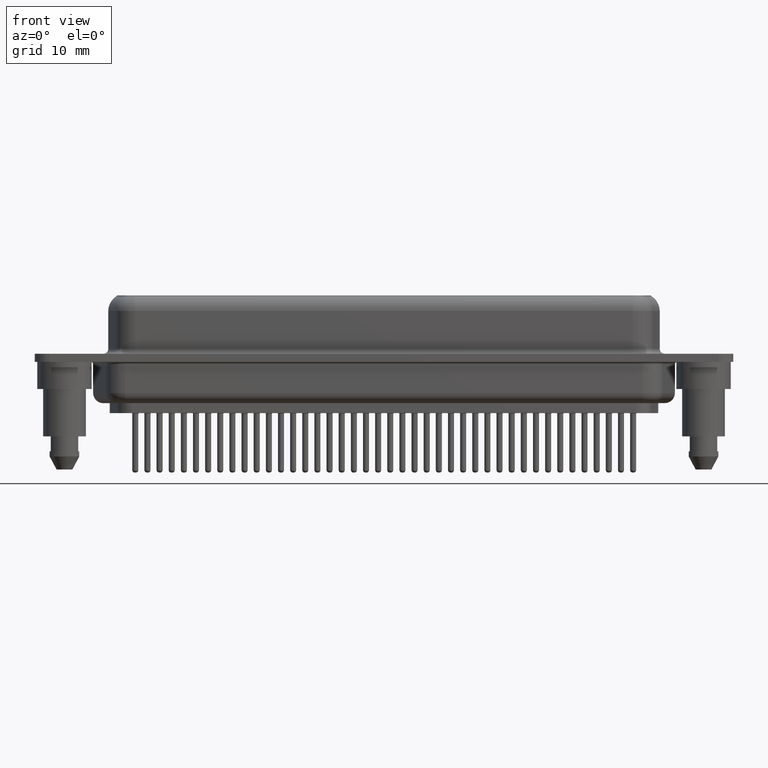
[diagram: clean part render]
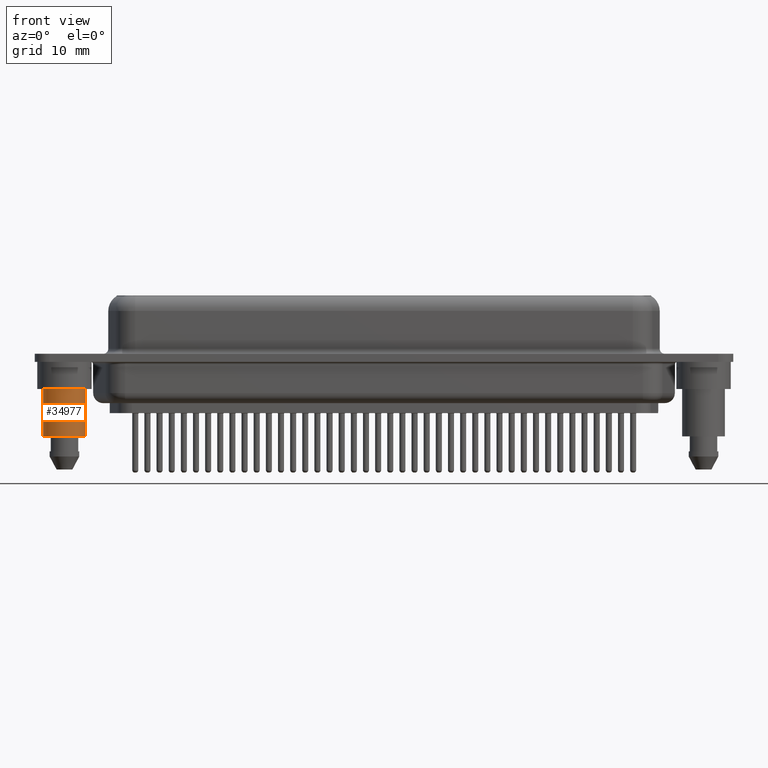
[diagram: same view with one face highlighted and labeled with its STEP entity id]
A machine part, front view. The second image highlights one B-rep face of the part: STEP entity #34977.
In plain terms, the highlighted cylindrical surface (edge-blend (fillet) strip) has radius 2.125 mm, axis along (0, 0, 1).
Its self-contained STEP definition (entity closure, byte-faithful):
#194 = LINE ( 'NONE', #15676, #34860 ) ;
#619 = AXIS2_PLACEMENT_3D ( 'NONE', #29354, #2535, #35436 ) ;
#1713 = DIRECTION ( 'NONE',  ( 1.000000000000000000, 0.0000000000000000000, 0.0000000000000000000 ) ) ;
#2535 = DIRECTION ( 'NONE',  ( -0.0000000000000000000, -0.0000000000000000000, 1.000000000000000000 ) ) ;
#2943 = AXIS2_PLACEMENT_3D ( 'NONE', #4268, #37152, #1713 ) ;
#3884 = ORIENTED_EDGE ( 'NONE', *, *, #26219, .T. ) ;
#4268 = CARTESIAN_POINT ( 'NONE',  ( 0.0000000000000000000, 0.0000000000000000000, 0.5806333143474410319 ) ) ;
#4740 = LINE ( 'NONE', #36647, #29201 ) ;
#5024 = AXIS2_PLACEMENT_3D ( 'NONE', #6746, #30611, #24757 ) ;
#5507 = VERTEX_POINT ( 'NONE', #38563 ) ;
#6746 = CARTESIAN_POINT ( 'NONE',  ( 0.0000000000000000000, 0.0000000000000000000, -7.800000000000001599 ) ) ;
#8567 = VERTEX_POINT ( 'NONE', #9098 ) ;
#9098 = CARTESIAN_POINT ( 'NONE',  ( -2.125000000000000000, 2.602374448188125350E-16, -7.800000000000001599 ) ) ;
#9845 = DIRECTION ( 'NONE',  ( -0.0000000000000000000, -0.0000000000000000000, 1.000000000000000000 ) ) ;
#10000 = DIRECTION ( 'NONE',  ( -0.0000000000000000000, -0.0000000000000000000, 1.000000000000000000 ) ) ;
#10027 = VERTEX_POINT ( 'NONE', #32585 ) ;
#11787 = EDGE_CURVE ( 'NONE', #8567, #10027, #4740, .T. ) ;
#14136 = EDGE_LOOP ( 'NONE', ( #37719, #33486, #3884, #35583 ) ) ;
#15676 = CARTESIAN_POINT ( 'NONE',  ( 2.125000000000000000, 0.0000000000000000000, 0.5806333143474410319 ) ) ;
#16113 = EDGE_CURVE ( 'NONE', #8567, #24828, #19414, .T. ) ;
#19414 = CIRCLE ( 'NONE', #5024, 2.125000000000000000 ) ;
#21319 = CIRCLE ( 'NONE', #619, 2.125000000000000000 ) ;
#24757 = DIRECTION ( 'NONE',  ( 1.000000000000000000, 0.0000000000000000000, 0.0000000000000000000 ) ) ;
#24778 = CARTESIAN_POINT ( 'NONE',  ( 2.125000000000000000, 0.0000000000000000000, -7.800000000000001599 ) ) ;
#24828 = VERTEX_POINT ( 'NONE', #24778 ) ;
#26219 = EDGE_CURVE ( 'NONE', #24828, #5507, #194, .T. ) ;
#28110 = EDGE_CURVE ( 'NONE', #10027, #5507, #21319, .T. ) ;
#29201 = VECTOR ( 'NONE', #9845, 1000.000000000000000 ) ;
#29354 = CARTESIAN_POINT ( 'NONE',  ( 0.0000000000000000000, 0.0000000000000000000, -3.100000000000000533 ) ) ;
#30611 = DIRECTION ( 'NONE',  ( -0.0000000000000000000, -0.0000000000000000000, 1.000000000000000000 ) ) ;
#31458 = FACE_OUTER_BOUND ( 'NONE', #14136, .T. ) ;
#32585 = CARTESIAN_POINT ( 'NONE',  ( -2.125000000000000000, 2.602374448188125350E-16, -3.100000000000000533 ) ) ;
#33486 = ORIENTED_EDGE ( 'NONE', *, *, #16113, .T. ) ;
#34796 = CYLINDRICAL_SURFACE ( 'NONE', #2943, 2.125000000000000000 ) ;
#34860 = VECTOR ( 'NONE', #10000, 1000.000000000000000 ) ;
#34977 = ADVANCED_FACE ( 'NONE', ( #31458 ), #34796, .T. ) ;
#35436 = DIRECTION ( 'NONE',  ( 1.000000000000000000, 0.0000000000000000000, 0.0000000000000000000 ) ) ;
#35583 = ORIENTED_EDGE ( 'NONE', *, *, #28110, .F. ) ;
#36647 = CARTESIAN_POINT ( 'NONE',  ( -2.125000000000000000, 2.602374448188125350E-16, 0.5806333143474410319 ) ) ;
#37152 = DIRECTION ( 'NONE',  ( -0.0000000000000000000, -0.0000000000000000000, 1.000000000000000000 ) ) ;
#37719 = ORIENTED_EDGE ( 'NONE', *, *, #11787, .F. ) ;
#38563 = CARTESIAN_POINT ( 'NONE',  ( 2.125000000000000000, 0.0000000000000000000, -3.100000000000000533 ) ) ;